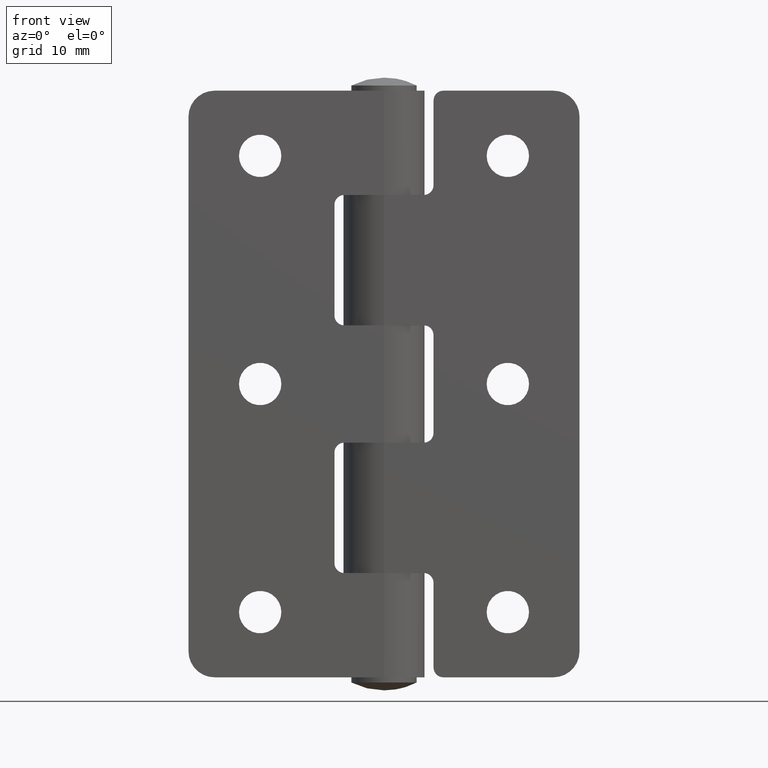
[diagram: clean part render]
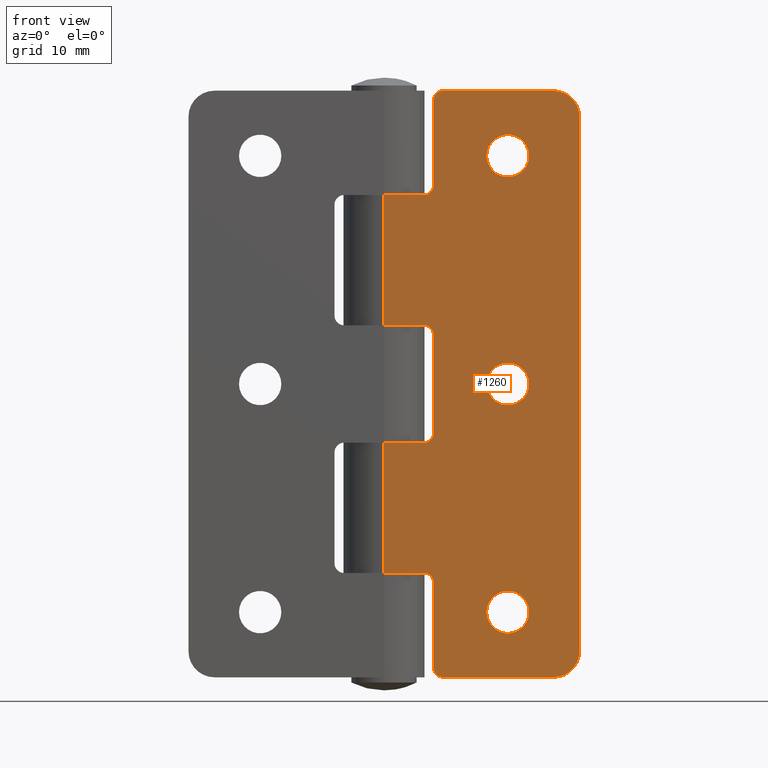
[diagram: same view with one face highlighted and labeled with its STEP entity id]
A machine part, front view. The second image highlights one B-rep face of the part: STEP entity #1260.
In plain terms, the highlighted planar face has unit normal (0, -1, -0).
Its self-contained STEP definition (entity closure, byte-faithful):
#52=FACE_BOUND('',#229,.T.);
#53=FACE_BOUND('',#230,.T.);
#54=FACE_BOUND('',#231,.T.);
#90=PLANE('',#1390);
#146=FACE_OUTER_BOUND('',#228,.T.);
#228=EDGE_LOOP('',(#1094,#1095,#1096,#1097,#1098,#1099,#1100,#1101,#1102,
#1103,#1104,#1105,#1106,#1107,#1108,#1109,#1110,#1111,#1112,#1113));
#229=EDGE_LOOP('',(#1114));
#230=EDGE_LOOP('',(#1115));
#231=EDGE_LOOP('',(#1116));
#319=LINE('',#2006,#425);
#333=LINE('',#2057,#439);
#337=LINE('',#2066,#443);
#342=LINE('',#2081,#448);
#346=LINE('',#2091,#452);
#350=LINE('',#2104,#456);
#351=LINE('',#2106,#457);
#352=LINE('',#2109,#458);
#355=LINE('',#2118,#461);
#358=LINE('',#2129,#464);
#359=LINE('',#2131,#465);
#360=LINE('',#2132,#466);
#425=VECTOR('',#1622,16.9);
#439=VECTOR('',#1664,16.9);
#443=VECTOR('',#1674,13.);
#448=VECTOR('',#1689,6.10000000000001);
#452=VECTOR('',#1699,15.);
#456=VECTOR('',#1713,6.10000000000001);
#457=VECTOR('',#1716,13.);
#458=VECTOR('',#1719,6.10000000000001);
#461=VECTOR('',#1728,6.10000000000001);
#464=VECTOR('',#1739,82.);
#465=VECTOR('',#1742,20.);
#466=VECTOR('',#1743,20.);
#504=CIRCLE('',#1351,1.5);
#515=CIRCLE('',#1365,1.5);
#516=CIRCLE('',#1368,1.5);
#517=CIRCLE('',#1371,1.5);
#520=CIRCLE('',#1376,1.5);
#521=CIRCLE('',#1379,1.5);
#528=CIRCLE('',#1391,4.);
#529=CIRCLE('',#1392,4.);
#530=CIRCLE('',#1393,3.25);
#531=CIRCLE('',#1394,3.25);
#532=CIRCLE('',#1395,3.25);
#595=VERTEX_POINT('',#1996);
#596=VERTEX_POINT('',#1998);
#598=VERTEX_POINT('',#2004);
#619=VERTEX_POINT('',#2050);
#620=VERTEX_POINT('',#2051);
#621=VERTEX_POINT('',#2056);
#622=VERTEX_POINT('',#2060);
#623=VERTEX_POINT('',#2062);
#624=VERTEX_POINT('',#2068);
#625=VERTEX_POINT('',#2070);
#628=VERTEX_POINT('',#2079);
#629=VERTEX_POINT('',#2083);
#630=VERTEX_POINT('',#2085);
#631=VERTEX_POINT('',#2089);
#632=VERTEX_POINT('',#2093);
#635=VERTEX_POINT('',#2102);
#636=VERTEX_POINT('',#2108);
#639=VERTEX_POINT('',#2117);
#642=VERTEX_POINT('',#2126);
#643=VERTEX_POINT('',#2128);
#644=VERTEX_POINT('',#2133);
#645=VERTEX_POINT('',#2135);
#646=VERTEX_POINT('',#2137);
#739=EDGE_CURVE('',#595,#596,#504,.T.);
#743=EDGE_CURVE('',#598,#595,#319,.T.);
#765=EDGE_CURVE('',#619,#620,#515,.T.);
#768=EDGE_CURVE('',#620,#621,#333,.T.);
#771=EDGE_CURVE('',#622,#623,#516,.T.);
#773=EDGE_CURVE('',#622,#596,#337,.T.);
#775=EDGE_CURVE('',#624,#625,#517,.T.);
#781=EDGE_CURVE('',#624,#628,#342,.T.);
#783=EDGE_CURVE('',#629,#630,#520,.T.);
#786=EDGE_CURVE('',#629,#631,#346,.T.);
#788=EDGE_CURVE('',#632,#631,#521,.T.);
#793=EDGE_CURVE('',#632,#635,#350,.T.);
#794=EDGE_CURVE('',#619,#625,#351,.T.);
#795=EDGE_CURVE('',#636,#630,#352,.T.);
#800=EDGE_CURVE('',#639,#623,#355,.T.);
#805=EDGE_CURVE('',#642,#598,#528,.T.);
#806=EDGE_CURVE('',#643,#642,#358,.T.);
#807=EDGE_CURVE('',#621,#643,#529,.T.);
#808=EDGE_CURVE('',#628,#636,#359,.T.);
#809=EDGE_CURVE('',#635,#639,#360,.T.);
#810=EDGE_CURVE('',#644,#644,#530,.T.);
#811=EDGE_CURVE('',#645,#645,#531,.T.);
#812=EDGE_CURVE('',#646,#646,#532,.T.);
#1094=ORIENTED_EDGE('',*,*,#739,.F.);
#1095=ORIENTED_EDGE('',*,*,#743,.F.);
#1096=ORIENTED_EDGE('',*,*,#805,.F.);
#1097=ORIENTED_EDGE('',*,*,#806,.F.);
#1098=ORIENTED_EDGE('',*,*,#807,.F.);
#1099=ORIENTED_EDGE('',*,*,#768,.F.);
#1100=ORIENTED_EDGE('',*,*,#765,.F.);
#1101=ORIENTED_EDGE('',*,*,#794,.T.);
#1102=ORIENTED_EDGE('',*,*,#775,.F.);
#1103=ORIENTED_EDGE('',*,*,#781,.T.);
#1104=ORIENTED_EDGE('',*,*,#808,.T.);
#1105=ORIENTED_EDGE('',*,*,#795,.T.);
#1106=ORIENTED_EDGE('',*,*,#783,.F.);
#1107=ORIENTED_EDGE('',*,*,#786,.T.);
#1108=ORIENTED_EDGE('',*,*,#788,.F.);
#1109=ORIENTED_EDGE('',*,*,#793,.T.);
#1110=ORIENTED_EDGE('',*,*,#809,.T.);
#1111=ORIENTED_EDGE('',*,*,#800,.T.);
#1112=ORIENTED_EDGE('',*,*,#771,.F.);
#1113=ORIENTED_EDGE('',*,*,#773,.T.);
#1114=ORIENTED_EDGE('',*,*,#810,.T.);
#1115=ORIENTED_EDGE('',*,*,#811,.T.);
#1116=ORIENTED_EDGE('',*,*,#812,.T.);
#1260=ADVANCED_FACE('',(#146,#52,#53,#54),#90,.T.);
#1351=AXIS2_PLACEMENT_3D('',#1999,#1615,#1616);
#1365=AXIS2_PLACEMENT_3D('',#2052,#1658,#1659);
#1368=AXIS2_PLACEMENT_3D('',#2063,#1669,#1670);
#1371=AXIS2_PLACEMENT_3D('',#2071,#1678,#1679);
#1376=AXIS2_PLACEMENT_3D('',#2086,#1693,#1694);
#1379=AXIS2_PLACEMENT_3D('',#2095,#1703,#1704);
#1390=AXIS2_PLACEMENT_3D('',#2125,#1735,#1736);
#1391=AXIS2_PLACEMENT_3D('',#2127,#1737,#1738);
#1392=AXIS2_PLACEMENT_3D('',#2130,#1740,#1741);
#1393=AXIS2_PLACEMENT_3D('',#2134,#1744,#1745);
#1394=AXIS2_PLACEMENT_3D('',#2136,#1746,#1747);
#1395=AXIS2_PLACEMENT_3D('',#2138,#1748,#1749);
#1615=DIRECTION('center_axis',(-1.48029736616688E-16,1.,0.));
#1616=DIRECTION('ref_axis',(0.707106781186547,1.04672830578919E-16,0.707106781186548));
#1622=DIRECTION('',(1.,1.48029736616688E-16,0.));
#1658=DIRECTION('center_axis',(-1.48029736616688E-16,1.,0.));
#1659=DIRECTION('ref_axis',(0.707106781186547,1.04672830578919E-16,-0.707106781186548));
#1664=DIRECTION('',(-1.,-1.48029736616688E-16,0.));
#1669=DIRECTION('center_axis',(1.48029736616688E-16,-1.,0.));
#1670=DIRECTION('ref_axis',(-0.707106781186549,-1.04672830578919E-16,-0.707106781186546));
#1674=DIRECTION('',(0.,0.,1.));
#1678=DIRECTION('center_axis',(1.48029736616688E-16,-1.,0.));
#1679=DIRECTION('ref_axis',(-0.707106781186547,-1.04672830578919E-16,0.707106781186548));
#1689=DIRECTION('',(1.,1.48029736616688E-16,2.22044604925031E-16));
#1693=DIRECTION('center_axis',(1.48029736616688E-16,-1.,0.));
#1694=DIRECTION('ref_axis',(-0.707106781186547,-1.04672830578919E-16,-0.707106781186547));
#1699=DIRECTION('',(0.,0.,1.));
#1703=DIRECTION('center_axis',(1.48029736616688E-16,-1.,0.));
#1704=DIRECTION('ref_axis',(-0.707106781186548,-1.04672830578919E-16,0.707106781186547));
#1713=DIRECTION('',(1.,1.48029736616688E-16,0.));
#1716=DIRECTION('',(0.,0.,1.));
#1719=DIRECTION('',(-1.,-1.48029736616688E-16,-1.48029736616688E-16));
#1728=DIRECTION('',(-1.,-1.48029736616688E-16,0.));
#1735=DIRECTION('center_axis',(1.48029736616688E-16,-1.,0.));
#1736=DIRECTION('ref_axis',(1.,0.,0.));
#1737=DIRECTION('center_axis',(-1.48029736616688E-16,1.,0.));
#1738=DIRECTION('ref_axis',(-0.707106781186547,-1.04672830578919E-16,0.707106781186548));
#1739=DIRECTION('',(0.,0.,1.));
#1740=DIRECTION('center_axis',(-1.48029736616688E-16,1.,0.));
#1741=DIRECTION('ref_axis',(-0.707106781186547,-1.04672830578919E-16,-0.707106781186548));
#1742=DIRECTION('',(0.,0.,1.));
#1743=DIRECTION('',(0.,0.,1.));
#1744=DIRECTION('center_axis',(-1.48029736616688E-16,1.,0.));
#1745=DIRECTION('ref_axis',(1.,1.48029736616688E-16,0.));
#1746=DIRECTION('center_axis',(-1.48029736616688E-16,1.,0.));
#1747=DIRECTION('ref_axis',(1.,1.48029736616688E-16,0.));
#1748=DIRECTION('center_axis',(-1.48029736616688E-16,1.,0.));
#1749=DIRECTION('ref_axis',(1.,1.48029736616688E-16,0.));
#1996=CARTESIAN_POINT('',(-9.10000000000001,-6.25,45.));
#1998=CARTESIAN_POINT('',(-7.60000000000001,-6.25,43.5));
#1999=CARTESIAN_POINT('Origin',(-9.10000000000001,-6.25,43.5));
#2004=CARTESIAN_POINT('',(-26.,-6.25,45.));
#2006=CARTESIAN_POINT('',(-30.,-6.25,45.));
#2050=CARTESIAN_POINT('',(-7.60000000000001,-6.25,-43.5));
#2051=CARTESIAN_POINT('',(-9.10000000000001,-6.25,-45.));
#2052=CARTESIAN_POINT('Origin',(-9.10000000000001,-6.25,-43.5));
#2056=CARTESIAN_POINT('',(-26.,-6.25,-45.));
#2057=CARTESIAN_POINT('',(-30.,-6.25,-45.));
#2060=CARTESIAN_POINT('',(-7.60000000000001,-6.25,30.5));
#2062=CARTESIAN_POINT('',(-6.10000000000001,-6.25,29.));
#2063=CARTESIAN_POINT('Origin',(-6.10000000000001,-6.25,30.5));
#2066=CARTESIAN_POINT('',(-7.60000000000001,-6.25,14.5));
#2068=CARTESIAN_POINT('',(-6.10000000000001,-6.25,-29.));
#2070=CARTESIAN_POINT('',(-7.60000000000001,-6.25,-30.5));
#2071=CARTESIAN_POINT('Origin',(-6.10000000000001,-6.25,-30.5));
#2079=CARTESIAN_POINT('',(7.65404249467096E-16,-6.25,-29.));
#2081=CARTESIAN_POINT('',(-18.8,-6.25,-29.));
#2083=CARTESIAN_POINT('',(-7.60000000000001,-6.25,-7.5));
#2085=CARTESIAN_POINT('',(-6.10000000000001,-6.25,-9.));
#2086=CARTESIAN_POINT('Origin',(-6.10000000000001,-6.25,-7.5));
#2089=CARTESIAN_POINT('',(-7.60000000000001,-6.25,7.5));
#2091=CARTESIAN_POINT('',(-7.60000000000001,-6.25,-4.5));
#2093=CARTESIAN_POINT('',(-6.10000000000001,-6.25,9.));
#2095=CARTESIAN_POINT('Origin',(-6.10000000000001,-6.25,7.5));
#2102=CARTESIAN_POINT('',(7.65404249467096E-16,-6.25,9.));
#2104=CARTESIAN_POINT('',(-18.8,-6.25,9.));
#2106=CARTESIAN_POINT('',(-7.60000000000001,-6.25,-22.5));
#2108=CARTESIAN_POINT('',(7.65404249467096E-16,-6.25,-9.));
#2109=CARTESIAN_POINT('',(-3.80000000000001,-6.25,-9.));
#2117=CARTESIAN_POINT('',(7.65404249467096E-16,-6.25,29.));
#2118=CARTESIAN_POINT('',(-3.80000000000001,-6.25,29.));
#2125=CARTESIAN_POINT('Origin',(-30.,-6.25,0.));
#2126=CARTESIAN_POINT('',(-30.,-6.25,41.));
#2127=CARTESIAN_POINT('Origin',(-26.,-6.25,41.));
#2128=CARTESIAN_POINT('',(-30.,-6.25,-41.));
#2129=CARTESIAN_POINT('',(-30.,-6.25,0.));
#2130=CARTESIAN_POINT('Origin',(-26.,-6.25,-41.));
#2131=CARTESIAN_POINT('',(7.65404249467096E-16,-6.25,0.));
#2132=CARTESIAN_POINT('',(7.65404249467096E-16,-6.25,0.));
#2133=CARTESIAN_POINT('',(-22.25,-6.25,-35.));
#2134=CARTESIAN_POINT('Origin',(-19.,-6.25,-35.));
#2135=CARTESIAN_POINT('',(-22.25,-6.25,35.));
#2136=CARTESIAN_POINT('Origin',(-19.,-6.25,35.));
#2137=CARTESIAN_POINT('',(-22.25,-6.25,3.9801020972289E-16));
#2138=CARTESIAN_POINT('Origin',(-19.,-6.25,0.));